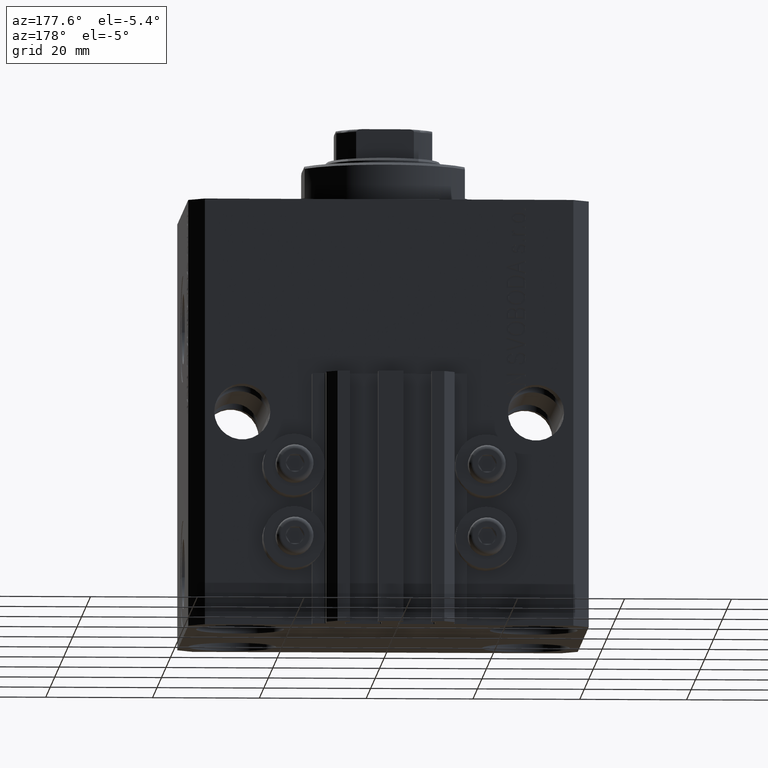
[diagram: clean part render]
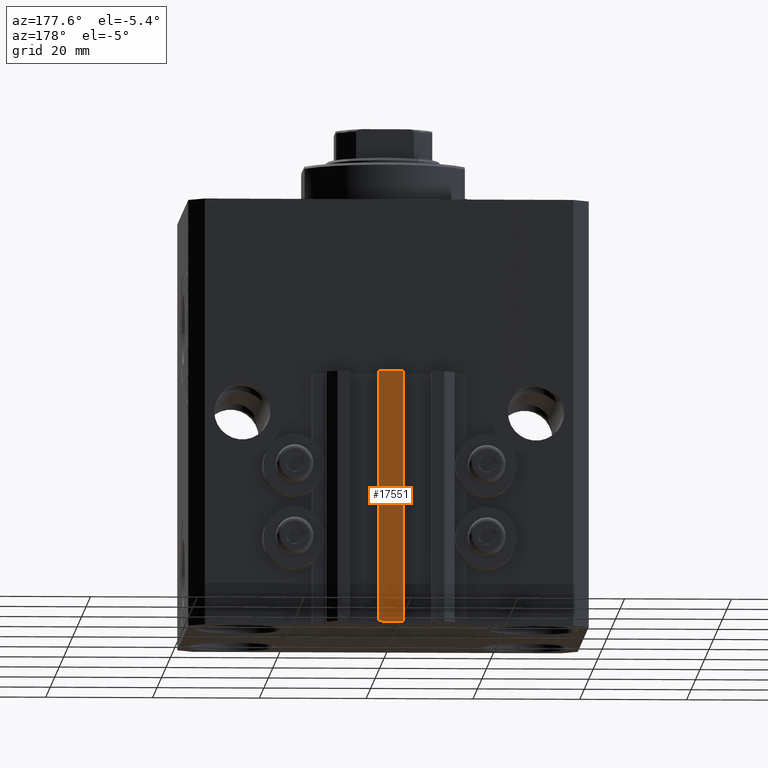
[diagram: same view with one face highlighted and labeled with its STEP entity id]
A machine part, auxiliary view. The second image highlights one B-rep face of the part: STEP entity #17551.
In plain terms, the highlighted planar face has unit normal (0, -1, 0).
Its self-contained STEP definition (entity closure, byte-faithful):
#3503 = VECTOR ( 'NONE', #3909, 1000.000000000000000 ) ;
#3896 = EDGE_LOOP ( 'NONE', ( #14569, #35270, #22613, #35653 ) ) ;
#3909 = DIRECTION ( 'NONE',  ( 1.000000000000000000, 0.000000000000000000, 0.000000000000000000 ) ) ;
#6149 = CARTESIAN_POINT ( 'NONE',  ( 2.349999999999999645, 35.50000000000001421, -80.00000000000000000 ) ) ;
#6430 = CARTESIAN_POINT ( 'NONE',  ( -2.350000000000003642, 35.50000000000001421, -80.00000000000000000 ) ) ;
#6751 = DIRECTION ( 'NONE',  ( 0.000000000000000000, 0.000000000000000000, 1.000000000000000000 ) ) ;
#9828 = CARTESIAN_POINT ( 'NONE',  ( -2.350000000000003642, 35.50000000000001421, -80.00000000000000000 ) ) ;
#14569 = ORIENTED_EDGE ( 'NONE', *, *, #24874, .T. ) ;
#16332 = LINE ( 'NONE', #19642, #20229 ) ;
#17490 = VECTOR ( 'NONE', #42396, 1000.000000000000000 ) ;
#17551 = ADVANCED_FACE ( 'NONE', ( #41511 ), #27309, .F. ) ;
#18294 = AXIS2_PLACEMENT_3D ( 'NONE', #33920, #27071, #30852 ) ;
#19642 = CARTESIAN_POINT ( 'NONE',  ( -2.350000000000003642, 35.50000000000001421, -33.00000000000000000 ) ) ;
#19976 = CARTESIAN_POINT ( 'NONE',  ( -2.350000000000003642, 35.50000000000001421, -33.00000000000000000 ) ) ;
#20229 = VECTOR ( 'NONE', #27003, 1000.000000000000000 ) ;
#20393 = VERTEX_POINT ( 'NONE', #19976 ) ;
#21550 = EDGE_CURVE ( 'NONE', #43595, #35779, #29038, .T. ) ;
#22613 = ORIENTED_EDGE ( 'NONE', *, *, #21550, .F. ) ;
#22911 = CARTESIAN_POINT ( 'NONE',  ( 2.349999999999999645, 35.50000000000001421, -33.00000000000000000 ) ) ;
#24574 = EDGE_CURVE ( 'NONE', #43595, #20393, #24770, .T. ) ;
#24770 = LINE ( 'NONE', #9828, #43702 ) ;
#24874 = EDGE_CURVE ( 'NONE', #20393, #42817, #16332, .T. ) ;
#25707 = CARTESIAN_POINT ( 'NONE',  ( -2.350000000000003642, 35.50000000000001421, -80.00000000000000000 ) ) ;
#27003 = DIRECTION ( 'NONE',  ( 1.000000000000000000, 0.000000000000000000, 0.000000000000000000 ) ) ;
#27071 = DIRECTION ( 'NONE',  ( 0.000000000000000000, -1.000000000000000000, 0.000000000000000000 ) ) ;
#27309 = PLANE ( 'NONE',  #18294 ) ;
#28429 = LINE ( 'NONE', #6149, #17490 ) ;
#29038 = LINE ( 'NONE', #25707, #3503 ) ;
#30852 = DIRECTION ( 'NONE',  ( 0.000000000000000000, -0.000000000000000000, -1.000000000000000000 ) ) ;
#33920 = CARTESIAN_POINT ( 'NONE',  ( -2.350000000000003642, 35.50000000000001421, -80.00000000000000000 ) ) ;
#35270 = ORIENTED_EDGE ( 'NONE', *, *, #39582, .F. ) ;
#35653 = ORIENTED_EDGE ( 'NONE', *, *, #24574, .T. ) ;
#35779 = VERTEX_POINT ( 'NONE', #42181 ) ;
#39582 = EDGE_CURVE ( 'NONE', #35779, #42817, #28429, .T. ) ;
#41511 = FACE_OUTER_BOUND ( 'NONE', #3896, .T. ) ;
#42181 = CARTESIAN_POINT ( 'NONE',  ( 2.349999999999999645, 35.50000000000001421, -80.00000000000000000 ) ) ;
#42396 = DIRECTION ( 'NONE',  ( 0.000000000000000000, 0.000000000000000000, 1.000000000000000000 ) ) ;
#42817 = VERTEX_POINT ( 'NONE', #22911 ) ;
#43595 = VERTEX_POINT ( 'NONE', #6430 ) ;
#43702 = VECTOR ( 'NONE', #6751, 1000.000000000000000 ) ;